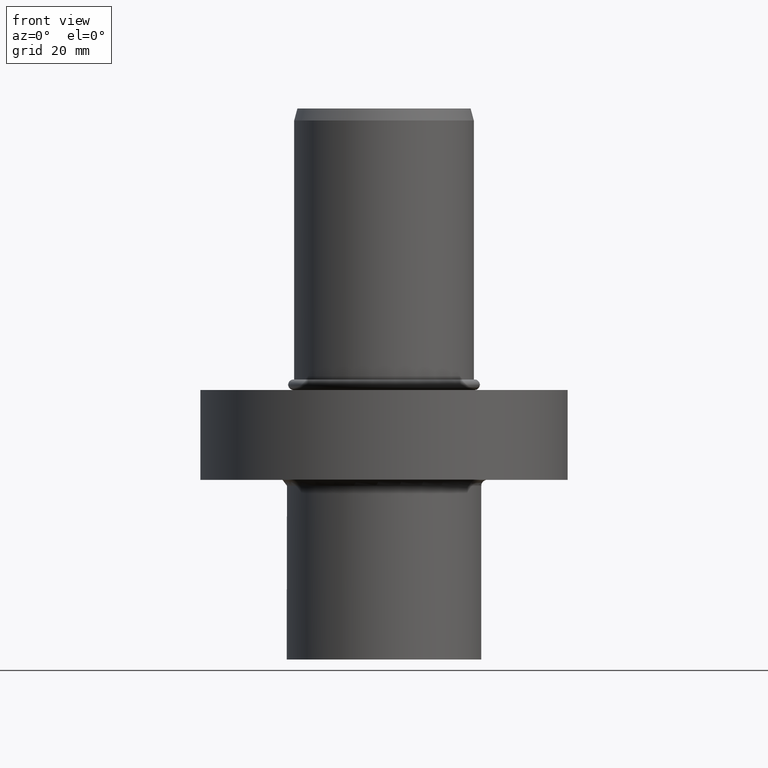
[diagram: clean part render]
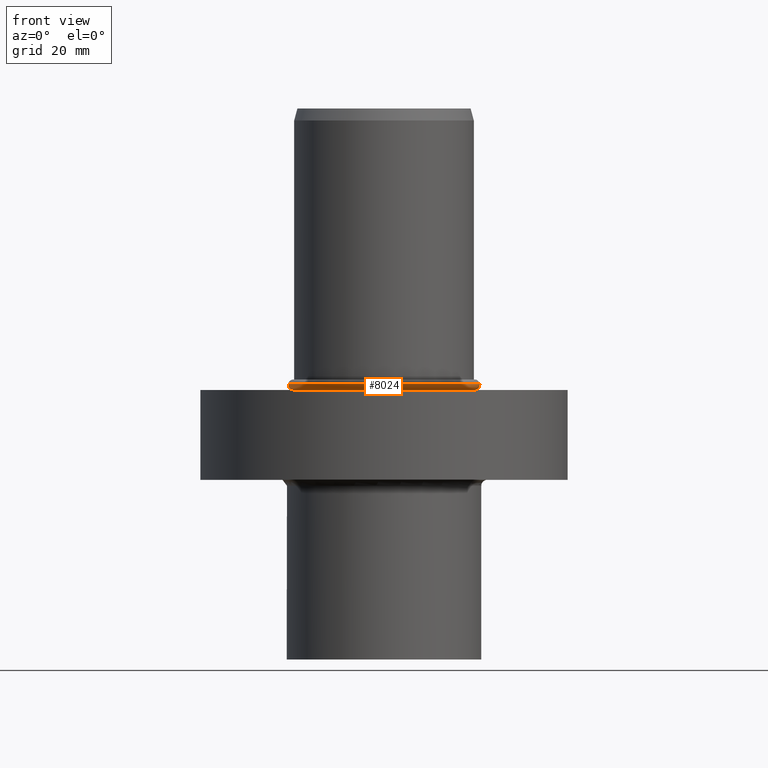
[diagram: same view with one face highlighted and labeled with its STEP entity id]
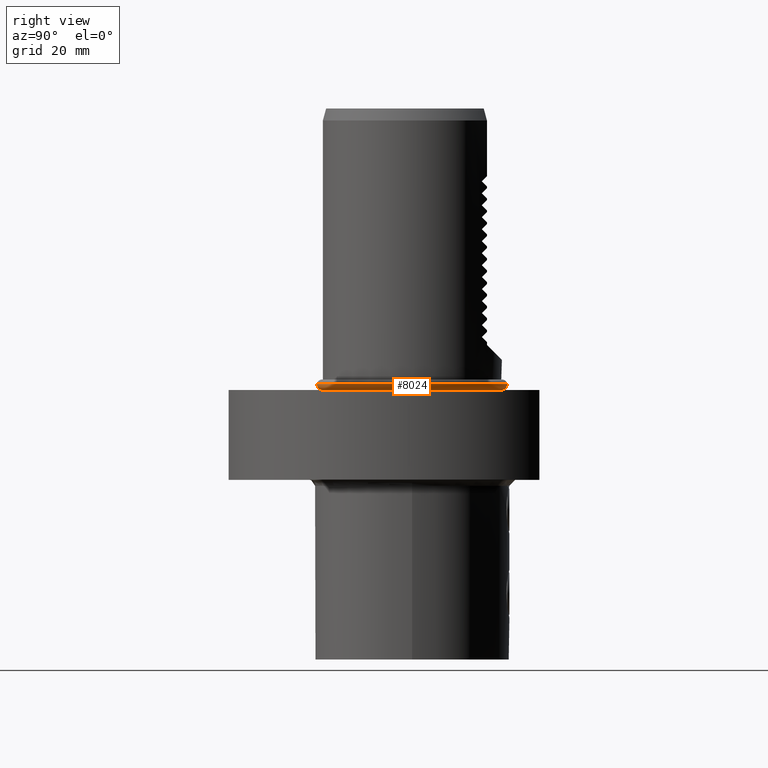
[diagram: same view with one face highlighted and labeled with its STEP entity id]
A machine part, front view. The second image highlights one B-rep face of the part: STEP entity #8024.
A second angle (right view) of the same face is appended — the face is thin or edge-on in the first view.
In plain terms, the highlighted toroidal blend (fillet) surface has major radius 30.2334 mm and minor (blend) radius 1.765 mm.
Its self-contained STEP definition (entity closure, byte-faithful):
#735 = AXIS2_PLACEMENT_3D ( 'NONE', #12107, #13389, #10172 ) ;
#1820 = CARTESIAN_POINT ( 'NONE',  ( 9.425724531835000044E-17, 1.080750800247530095E-16, 0.000000000000000000 ) ) ;
#2747 = FACE_OUTER_BOUND ( 'NONE', #10130, .T. ) ;
#3420 = EDGE_CURVE ( 'NONE', #4926, #4926, #13658, .T. ) ;
#4034 = ORIENTED_EDGE ( 'NONE', *, *, #5446, .T. ) ;
#4713 = EDGE_LOOP ( 'NONE', ( #13424 ) ) ;
#4746 = CARTESIAN_POINT ( 'NONE',  ( 9.723319460220659477E-16, 4.323003200990170175E-16, 1.765000000000000124 ) ) ;
#4926 = VERTEX_POINT ( 'NONE', #11317 ) ;
#5446 = EDGE_CURVE ( 'NONE', #5918, #5918, #8229, .T. ) ;
#5918 = VERTEX_POINT ( 'NONE', #10186 ) ;
#7591 = AXIS2_PLACEMENT_3D ( 'NONE', #4746, #9068, #11195 ) ;
#8024 = ADVANCED_FACE ( 'Defeature completata1_18', ( #10207, #2747 ), #9647, .T. ) ;
#8229 = CIRCLE ( 'NONE', #13458, 30.23340579561260100 ) ;
#9068 = DIRECTION ( 'NONE',  ( -5.481999291190779685E-16, -2.449293598294715289E-16, -1.000000000000000000 ) ) ;
#9647 = TOROIDAL_SURFACE ( 'NONE', #7591, 30.23340579561260100, 1.765000000000000124 ) ;
#10130 = EDGE_LOOP ( 'NONE', ( #4034 ) ) ;
#10172 = DIRECTION ( 'NONE',  ( 1.000000000000000000, -1.062181104213420072E-13, -6.031475547249382989E-16 ) ) ;
#10186 = CARTESIAN_POINT ( 'NONE',  ( -30.23340579561260100, 1.080750800247530095E-16, 1.504090013894411628E-14 ) ) ;
#10207 = FACE_OUTER_BOUND ( 'NONE', #4713, .T. ) ;
#10486 = DIRECTION ( 'NONE',  ( -1.000000000000000000, 0.000000000000000000, 4.974927482740570649E-16 ) ) ;
#11195 = DIRECTION ( 'NONE',  ( 1.000000000000000000, -1.062181104213419946E-13, -5.481999291190520347E-16 ) ) ;
#11317 = CARTESIAN_POINT ( 'NONE',  ( 31.99681159122509655, -3.398226936109511006E-12, 1.689999999999980851 ) ) ;
#12107 = CARTESIAN_POINT ( 'NONE',  ( 9.310147245197121483E-16, 4.139306181118059959E-16, 1.690000000000000169 ) ) ;
#13389 = DIRECTION ( 'NONE',  ( -6.029429767392420161E-16, -2.449293598294655138E-16, -1.000000000000000000 ) ) ;
#13424 = ORIENTED_EDGE ( 'NONE', *, *, #3420, .T. ) ;
#13458 = AXIS2_PLACEMENT_3D ( 'NONE', #1820, #13547, #10486 ) ;
#13547 = DIRECTION ( 'NONE',  ( 4.974927482740569663E-16, 1.836970198721029688E-16, 1.000000000000000000 ) ) ;
#13658 = CIRCLE ( 'NONE', #735, 31.99681159122509655 ) ;